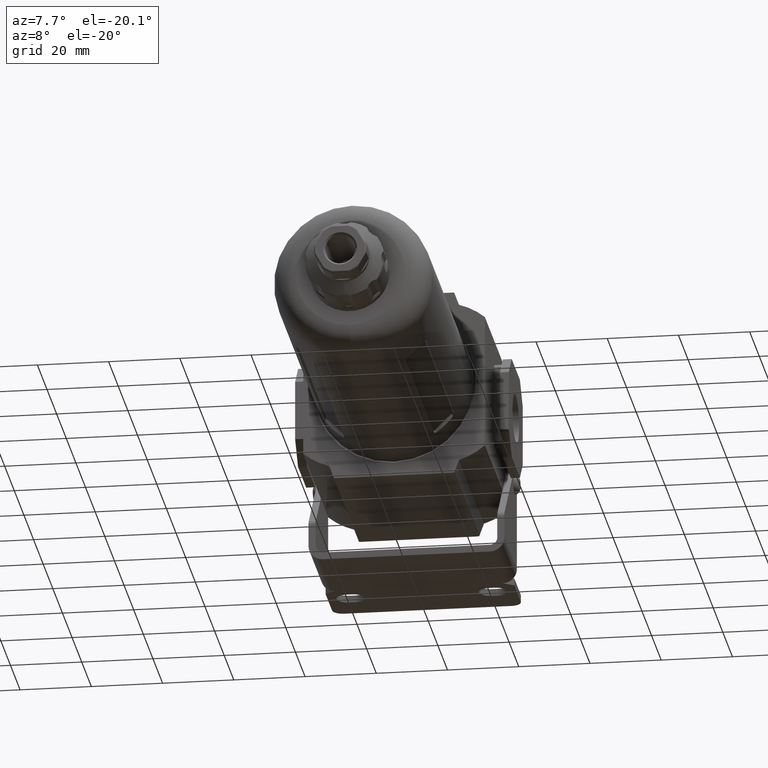
[diagram: clean part render]
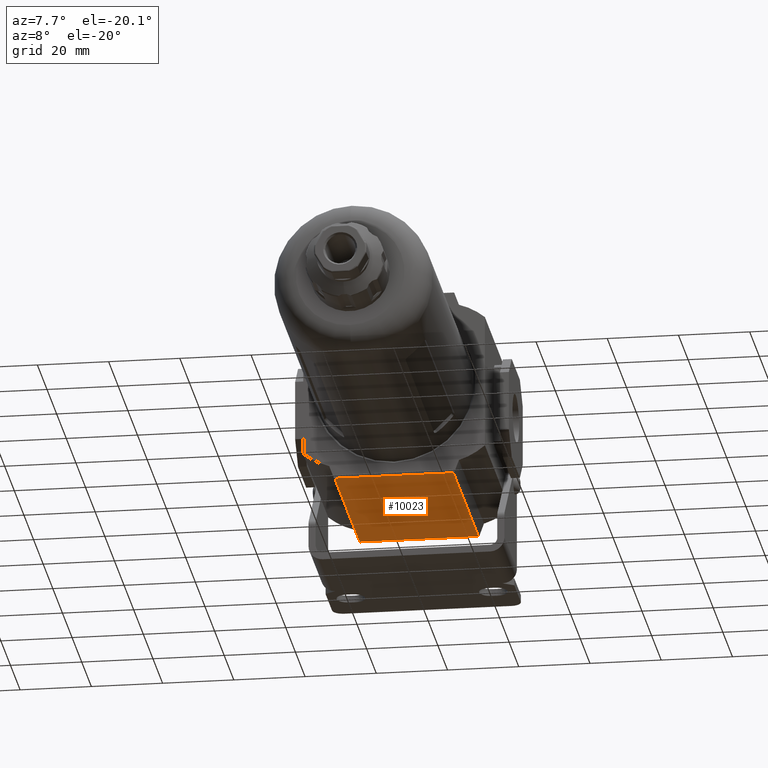
[diagram: same view with one face highlighted and labeled with its STEP entity id]
A machine part, auxiliary view. The second image highlights one B-rep face of the part: STEP entity #10023.
In plain terms, the highlighted planar face has unit normal (0, -0, 1).
Its self-contained STEP definition (entity closure, byte-faithful):
#944 = EDGE_CURVE ( 'NONE', #8153, #2522, #1204, .T. ) ;
#1178 = AXIS2_PLACEMENT_3D ( 'NONE', #5543, #7421, #1814 ) ;
#1204 = LINE ( 'NONE', #2324, #8380 ) ;
#1471 = VECTOR ( 'NONE', #2409, 1000.000000000000000 ) ;
#1814 = DIRECTION ( 'NONE',  ( 1.000000000000000000, 0.0000000000000000000, -0.0000000000000000000 ) ) ;
#2324 = CARTESIAN_POINT ( 'NONE',  ( 25.50000000000000400, 21.00000000000000400, -26.69999999999999900 ) ) ;
#2409 = DIRECTION ( 'NONE',  ( -9.130123557772672000E-017, 1.000000000000000000, 0.0000000000000000000 ) ) ;
#2522 = VERTEX_POINT ( 'NONE', #3449 ) ;
#2836 = FACE_OUTER_BOUND ( 'NONE', #5227, .T. ) ;
#3218 = CARTESIAN_POINT ( 'NONE',  ( 16.65993773853708100, 21.00000000000000400, -26.69999999999999900 ) ) ;
#3449 = CARTESIAN_POINT ( 'NONE',  ( -16.65993773853708500, 20.99999999999999600, -26.69999999999999900 ) ) ;
#3640 = PLANE ( 'NONE',  #1178 ) ;
#3653 = CARTESIAN_POINT ( 'NONE',  ( 16.65993773853707800, -31.00000000000000000, -26.69999999999999900 ) ) ;
#4293 = DIRECTION ( 'NONE',  ( 1.000000000000000000, -0.0000000000000000000, -0.0000000000000000000 ) ) ;
#5227 = EDGE_LOOP ( 'NONE', ( #9977, #5999, #10543, #9314 ) ) ;
#5418 = EDGE_CURVE ( 'NONE', #6024, #2522, #8689, .T. ) ;
#5543 = CARTESIAN_POINT ( 'NONE',  ( 0.0000000000000000000, 0.0000000000000000000, -26.69999999999999900 ) ) ;
#5637 = VERTEX_POINT ( 'NONE', #3653 ) ;
#5999 = ORIENTED_EDGE ( 'NONE', *, *, #9925, .T. ) ;
#6024 = VERTEX_POINT ( 'NONE', #7946 ) ;
#6074 = EDGE_CURVE ( 'NONE', #6024, #5637, #7179, .T. ) ;
#6142 = CARTESIAN_POINT ( 'NONE',  ( -16.65993773853708500, 20.99999999999999600, -26.69999999999999900 ) ) ;
#7179 = LINE ( 'NONE', #9935, #7465 ) ;
#7421 = DIRECTION ( 'NONE',  ( 0.0000000000000000000, -0.0000000000000000000, 1.000000000000000000 ) ) ;
#7465 = VECTOR ( 'NONE', #4293, 1000.000000000000000 ) ;
#7946 = CARTESIAN_POINT ( 'NONE',  ( -16.65993773853708500, -31.00000000000000000, -26.69999999999999900 ) ) ;
#8117 = LINE ( 'NONE', #11951, #8411 ) ;
#8153 = VERTEX_POINT ( 'NONE', #3218 ) ;
#8380 = VECTOR ( 'NONE', #9851, 1000.000000000000000 ) ;
#8411 = VECTOR ( 'NONE', #9140, 1000.000000000000000 ) ;
#8689 = LINE ( 'NONE', #6142, #1471 ) ;
#9140 = DIRECTION ( 'NONE',  ( -9.130123557772672000E-017, -1.000000000000000000, -0.0000000000000000000 ) ) ;
#9314 = ORIENTED_EDGE ( 'NONE', *, *, #5418, .T. ) ;
#9851 = DIRECTION ( 'NONE',  ( -1.000000000000000000, -1.360567432138672300E-016, 0.0000000000000000000 ) ) ;
#9925 = EDGE_CURVE ( 'NONE', #8153, #5637, #8117, .T. ) ;
#9935 = CARTESIAN_POINT ( 'NONE',  ( 25.50000000000000400, -31.00000000000000000, -26.69999999999999900 ) ) ;
#9977 = ORIENTED_EDGE ( 'NONE', *, *, #944, .F. ) ;
#10023 = ADVANCED_FACE ( 'NONE', ( #2836 ), #3640, .F. ) ;
#10543 = ORIENTED_EDGE ( 'NONE', *, *, #6074, .F. ) ;
#11951 = CARTESIAN_POINT ( 'NONE',  ( 16.65993773853708100, -1.521072900176433800E-015, -26.69999999999999900 ) ) ;